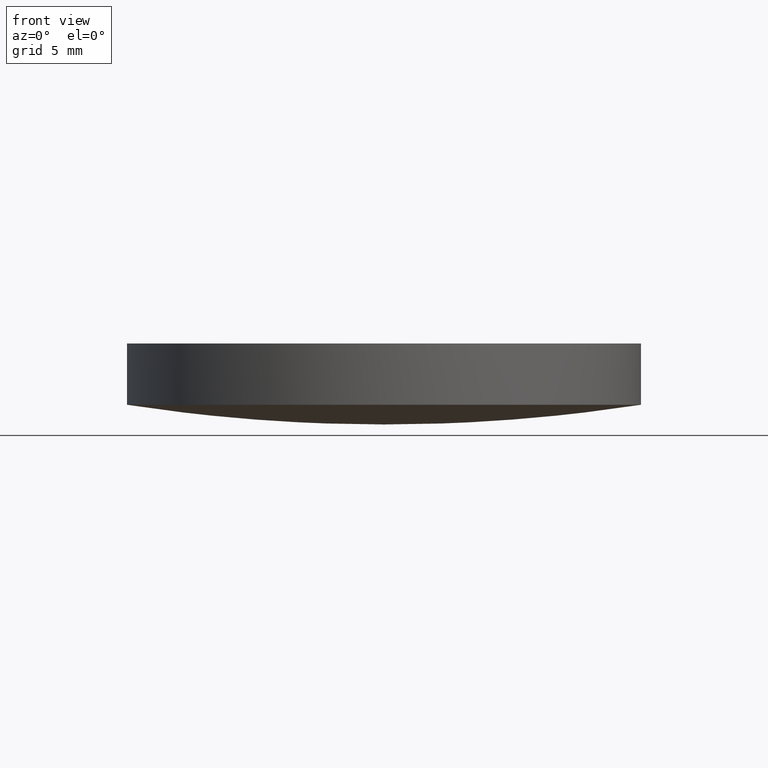
[diagram: clean part render]
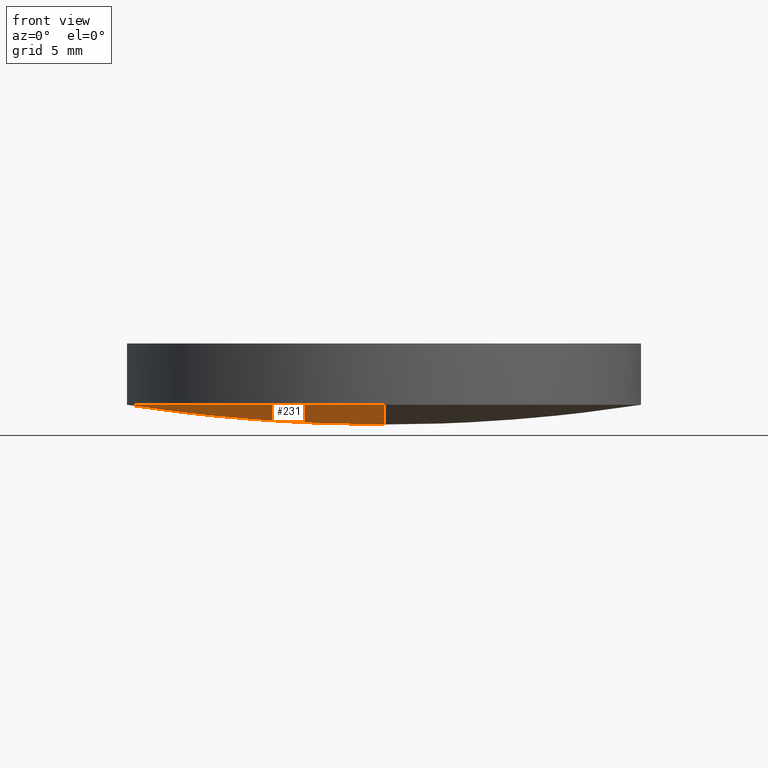
[diagram: same view with one face highlighted and labeled with its STEP entity id]
A machine part, front view. The second image highlights one B-rep face of the part: STEP entity #231.
In plain terms, the highlighted face is a freeform B-spline surface patch.
Its self-contained STEP definition (entity closure, byte-faithful):
#7 = CARTESIAN_POINT ( 'NONE',  ( -5.030698080332740600E-014, 12.85118684754875500, 0.9971632331299619100 ) ) ;
#10 = CARTESIAN_POINT ( 'NONE',  ( -12.82698051380064200, -4.318186088391136000, 0.6542992638710682900 ) ) ;
#27 = CARTESIAN_POINT ( 'NONE',  ( 4.996003610813200500E-016, 2.442490654175340100E-015, 0.9737012005033109900 ) ) ;
#28 = CIRCLE ( 'NONE', #82, 83.31000000000000200 ) ;
#34 = ORIENTED_EDGE ( 'NONE', *, *, #234, .F. ) ;
#38 =( BOUNDED_SURFACE ( )  B_SPLINE_SURFACE ( 3, 3, ( 
 ( #200, #139, #77, #144 ),
 ( #10, #56, #227, #113 ),
 ( #42, #204, #171, #58 ),
 ( #206, #189, #92, #7 ) ),
 .UNSPECIFIED., .F., .F., .F. ) 
 B_SPLINE_SURFACE_WITH_KNOTS ( ( 4, 4 ),
 ( 4, 4 ),
 ( 0.0000000000000000000, 1.000000000000000000 ),
 ( 0.0000000000000000000, 1.000000000000000000 ),
 .UNSPECIFIED. ) 
 GEOMETRIC_REPRESENTATION_ITEM ( )  RATIONAL_B_SPLINE_SURFACE ( (
 ( 1.000000000000000000, 0.9980257296944046200, 0.9980257296944046200, 1.000000000000000000),
 ( 0.9920204598637220000, 0.9900619433272699300, 0.9900619433272699300, 0.9920204598637220000),
 ( 0.9920204598637220000, 0.9900619433272699300, 0.9900619433272699300, 0.9920204598637220000),
 ( 1.000000000000000000, 0.9980257296944046200, 0.9980257296944046200, 1.000000000000000000) ) ) 
 REPRESENTATION_ITEM ( '' )  SURFACE ( )  );
#42 = CARTESIAN_POINT ( 'NONE',  ( -12.82698051380064200, 4.318186088391159100, 0.6542992638710675200 ) ) ;
#45 = AXIS2_PLACEMENT_3D ( 'NONE', #27, #169, #228 ) ;
#53 = CARTESIAN_POINT ( 'NONE',  ( -12.69999999999999900, 3.997792089092478900E-015, 0.9737012005033109900 ) ) ;
#56 = CARTESIAN_POINT ( 'NONE',  ( -8.580961051081519700, -4.318186088391136900, -0.004622122366847799700 ) ) ;
#58 = CARTESIAN_POINT ( 'NONE',  ( -5.204170427930421300E-014, 4.318186088391160000, -0.3350613801073520400 ) ) ;
#74 = VERTEX_POINT ( 'NONE', #181 ) ;
#77 = CARTESIAN_POINT ( 'NONE',  ( -4.228406556729954200, -12.85118684754873200, 0.9971632331299645800 ) ) ;
#81 = ORIENTED_EDGE ( 'NONE', *, *, #212, .T. ) ;
#82 = AXIS2_PLACEMENT_3D ( 'NONE', #115, #129, #210 ) ;
#92 = CARTESIAN_POINT ( 'NONE',  ( -4.228406556729954200, 12.85118684754875300, 0.9971632331299645800 ) ) ;
#108 = CIRCLE ( 'NONE', #45, 12.69999999999999900 ) ;
#113 = CARTESIAN_POINT ( 'NONE',  ( -5.204170427930421300E-014, -4.318186088391135200, -0.3350613801073512600 ) ) ;
#115 = CARTESIAN_POINT ( 'NONE',  ( 0.0000000000000000000, 7.105427357601000300E-015, 83.31000000000000200 ) ) ;
#127 = CARTESIAN_POINT ( 'NONE',  ( 4.996003610813200500E-016, 2.442490654175340100E-015, 0.9737012005033109900 ) ) ;
#129 = DIRECTION ( 'NONE',  ( 1.000000000000000000, 1.229598738253770100E-031, -3.525219918788039800E-016 ) ) ;
#131 = CIRCLE ( 'NONE', #194, 12.69999999999999900 ) ;
#135 = ORIENTED_EDGE ( 'NONE', *, *, #217, .T. ) ;
#139 = CARTESIAN_POINT ( 'NONE',  ( -8.444291087202453000, -12.85118684754873200, 1.322339546411122700 ) ) ;
#144 = CARTESIAN_POINT ( 'NONE',  ( -5.030698080332740600E-014, -12.85118684754873400, 0.9971632331299619100 ) ) ;
#165 = VERTEX_POINT ( 'NONE', #226 ) ;
#167 = DIRECTION ( 'NONE',  ( 1.000000000000000000, 8.881784197001252300E-016, 0.0000000000000000000 ) ) ;
#169 = DIRECTION ( 'NONE',  ( -0.0000000000000000000, -0.0000000000000000000, -1.000000000000000000 ) ) ;
#171 = CARTESIAN_POINT ( 'NONE',  ( -4.296842872509038200, 4.318186088391158300, -0.3350613801073493700 ) ) ;
#177 = VERTEX_POINT ( 'NONE', #53 ) ;
#181 = CARTESIAN_POINT ( 'NONE',  ( -2.902535605672694400E-014, 12.70000000000003300, 0.9737012005033203200 ) ) ;
#185 = DIRECTION ( 'NONE',  ( -0.0000000000000000000, -0.0000000000000000000, -1.000000000000000000 ) ) ;
#189 = CARTESIAN_POINT ( 'NONE',  ( -8.444291087202453000, 12.85118684754875300, 1.322339546411122700 ) ) ;
#192 = EDGE_LOOP ( 'NONE', ( #34, #135, #81 ) ) ;
#194 = AXIS2_PLACEMENT_3D ( 'NONE', #127, #185, #167 ) ;
#199 = FACE_OUTER_BOUND ( 'NONE', #192, .T. ) ;
#200 = CARTESIAN_POINT ( 'NONE',  ( -12.62268370449655000, -12.85118684754873400, 1.970766215155253400 ) ) ;
#204 = CARTESIAN_POINT ( 'NONE',  ( -8.580961051081518000, 4.318186088391157400, -0.004622122366848666200 ) ) ;
#206 = CARTESIAN_POINT ( 'NONE',  ( -12.62268370449655000, 12.85118684754875500, 1.970766215155253400 ) ) ;
#210 = DIRECTION ( 'NONE',  ( 1.970575965456774000E-046, -1.000000000000000000, -3.331601922413745500E-016 ) ) ;
#212 = EDGE_CURVE ( 'NONE', #177, #74, #131, .T. ) ;
#217 = EDGE_CURVE ( 'NONE', #165, #177, #108, .T. ) ;
#226 = CARTESIAN_POINT ( 'NONE',  ( -2.902535605672694400E-014, -12.70000000000002400, 0.9737012005033203200 ) ) ;
#227 = CARTESIAN_POINT ( 'NONE',  ( -4.296842872509038200, -4.318186088391136000, -0.3350613801073484800 ) ) ;
#228 = DIRECTION ( 'NONE',  ( 1.000000000000000000, 8.881784197001252300E-016, 0.0000000000000000000 ) ) ;
#231 = ADVANCED_FACE ( 'NONE', ( #199 ), #38, .T. ) ;
#234 = EDGE_CURVE ( 'NONE', #165, #74, #28, .T. ) ;